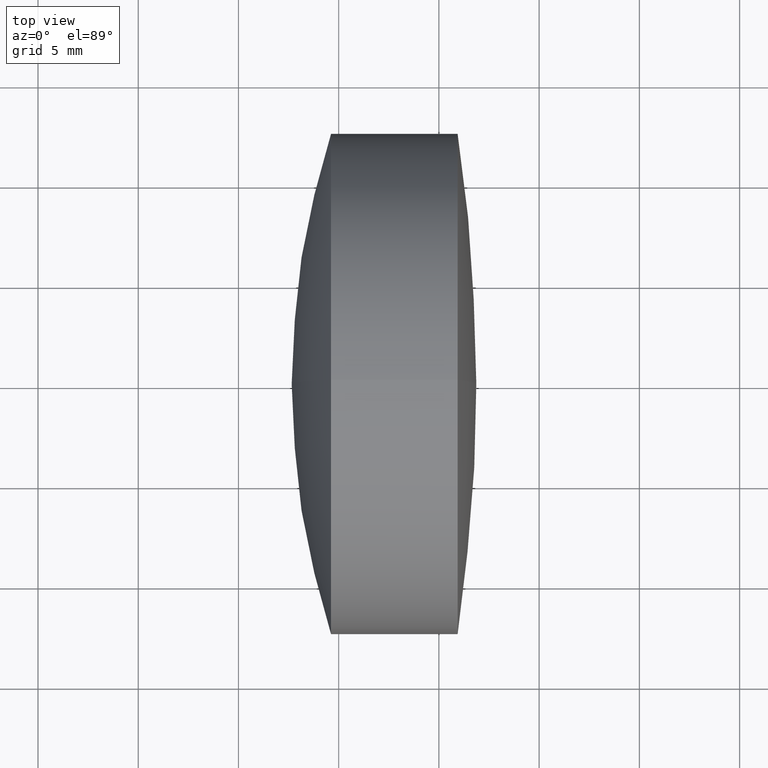
[diagram: clean part render]
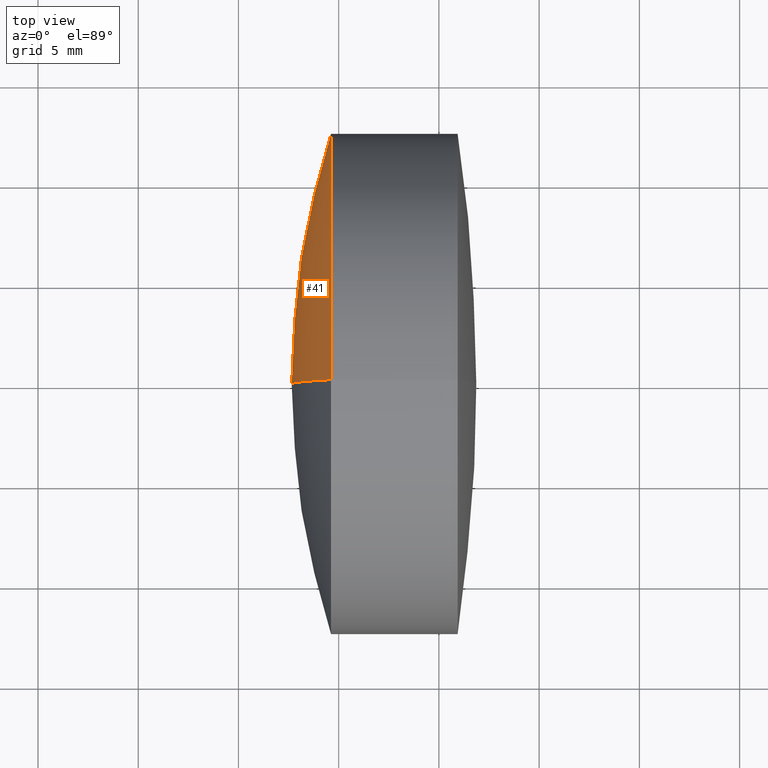
[diagram: same view with one face highlighted and labeled with its STEP entity id]
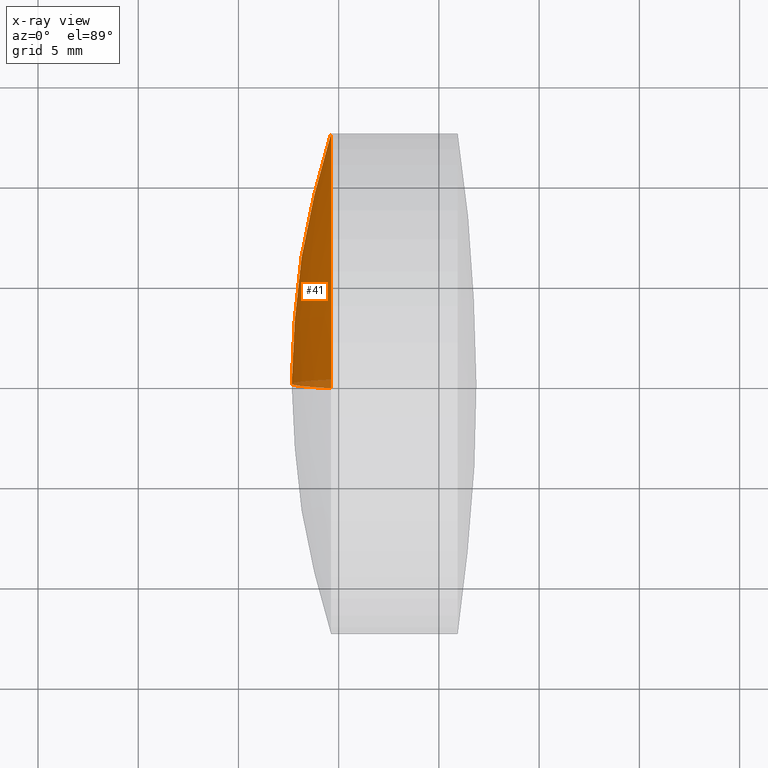
[diagram: x-ray of the same camera — body ghosted, the highlighted face saturated]
A machine part, top view. The second image highlights one B-rep face of the part: STEP entity #41.
The next image is the same camera in x-ray: the body ghosted, the highlighted face saturated — about 3% of this face is hidden behind the body in this view.
In plain terms, the highlighted spherical surface has radius 40.782 mm.
Its self-contained STEP definition (entity closure, byte-faithful):
#11 = AXIS2_PLACEMENT_3D ( 'NONE', #87, #14, #38 ) ;
#14 = DIRECTION ( 'NONE',  ( 0.0000000000000000000, 1.000000000000000000, -0.0000000000000000000 ) ) ;
#38 = DIRECTION ( 'NONE',  ( 0.0000000000000000000, 0.0000000000000000000, 1.000000000000000000 ) ) ;
#41 = ADVANCED_FACE ( 'NONE', ( #247 ), #221, .T. ) ;
#44 = EDGE_LOOP ( 'NONE', ( #254, #155, #100 ) ) ;
#70 = EDGE_CURVE ( 'NONE', #224, #138, #346, .T. ) ;
#83 = DIRECTION ( 'NONE',  ( 0.0000000000000000000, 0.0000000000000000000, 1.000000000000000000 ) ) ;
#87 = CARTESIAN_POINT ( 'NONE',  ( 78.43766897357473100, 0.0000000000000000000, 9.088469244024832500E-017 ) ) ;
#100 = ORIENTED_EDGE ( 'NONE', *, *, #220, .T. ) ;
#102 = DIRECTION ( 'NONE',  ( 0.0000000000000000000, 1.224646799147353200E-016, -1.000000000000000000 ) ) ;
#104 = DIRECTION ( 'NONE',  ( 0.0000000000000000000, 0.0000000000000000000, -1.000000000000000000 ) ) ;
#105 = CARTESIAN_POINT ( 'NONE',  ( 78.43766897357473100, 0.0000000000000000000, 9.088469244024832500E-017 ) ) ;
#107 = AXIS2_PLACEMENT_3D ( 'NONE', #109, #261, #83 ) ;
#109 = CARTESIAN_POINT ( 'NONE',  ( 39.61858186426729100, 0.0000000000000000000, 0.0000000000000000000 ) ) ;
#133 = CIRCLE ( 'NONE', #11, 40.78199999999999600 ) ;
#134 = CARTESIAN_POINT ( 'NONE',  ( 78.43766897357473100, 0.0000000000000000000, 9.088469244024832500E-017 ) ) ;
#138 = VERTEX_POINT ( 'NONE', #233 ) ;
#152 = CIRCLE ( 'NONE', #107, 12.50000000000000000 ) ;
#155 = ORIENTED_EDGE ( 'NONE', *, *, #252, .T. ) ;
#204 = AXIS2_PLACEMENT_3D ( 'NONE', #105, #345, #104 ) ;
#220 = EDGE_CURVE ( 'NONE', #344, #138, #133, .T. ) ;
#221 = SPHERICAL_SURFACE ( 'NONE', #204, 40.78199999999999600 ) ;
#224 = VERTEX_POINT ( 'NONE', #272 ) ;
#233 = CARTESIAN_POINT ( 'NONE',  ( 37.65566897357474100, 0.0000000000000000000, -2.406292595701119300E-015 ) ) ;
#247 = FACE_OUTER_BOUND ( 'NONE', #44, .T. ) ;
#252 = EDGE_CURVE ( 'NONE', #224, #344, #152, .T. ) ;
#254 = ORIENTED_EDGE ( 'NONE', *, *, #70, .F. ) ;
#261 = DIRECTION ( 'NONE',  ( -1.000000000000000000, -0.0000000000000000000, -0.0000000000000000000 ) ) ;
#272 = CARTESIAN_POINT ( 'NONE',  ( 39.61858186426729100, -1.530808498934191700E-015, 12.50000000000000200 ) ) ;
#281 = DIRECTION ( 'NONE',  ( 0.0000000000000000000, -1.000000000000000000, -1.224646799147353200E-016 ) ) ;
#301 = AXIS2_PLACEMENT_3D ( 'NONE', #134, #281, #102 ) ;
#326 = CARTESIAN_POINT ( 'NONE',  ( 39.61858186426729100, 0.0000000000000000000, -12.50000000000000200 ) ) ;
#344 = VERTEX_POINT ( 'NONE', #326 ) ;
#345 = DIRECTION ( 'NONE',  ( -0.0000000000000000000, -1.000000000000000000, -0.0000000000000000000 ) ) ;
#346 = CIRCLE ( 'NONE', #301, 40.78199999999999600 ) ;